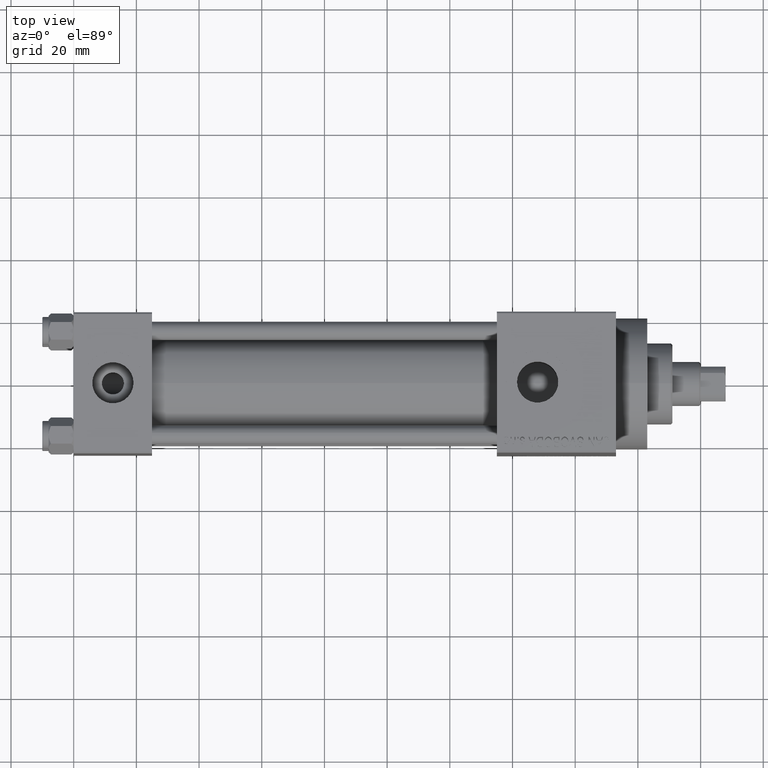
[diagram: clean part render]
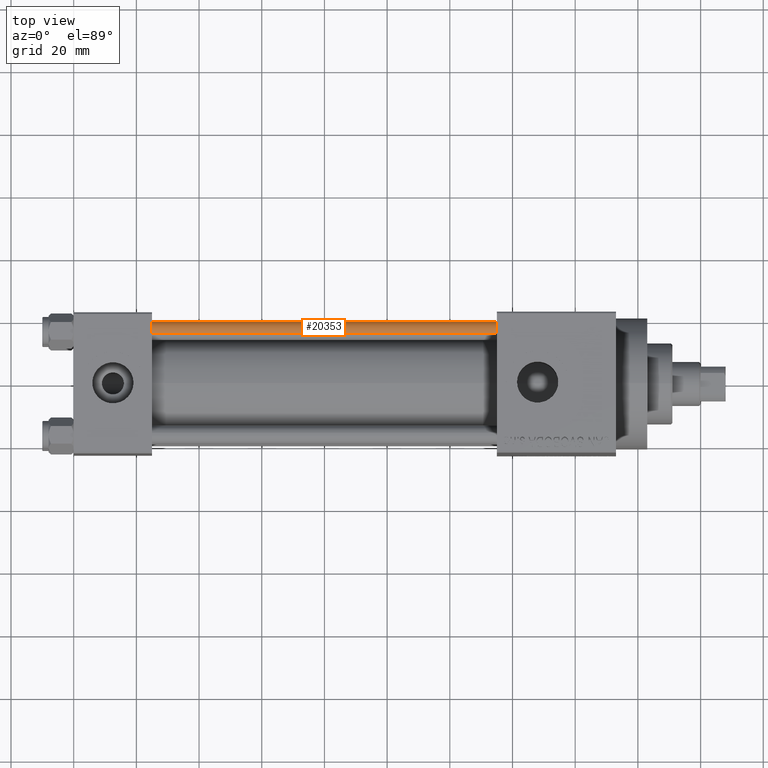
[diagram: same view with one face highlighted and labeled with its STEP entity id]
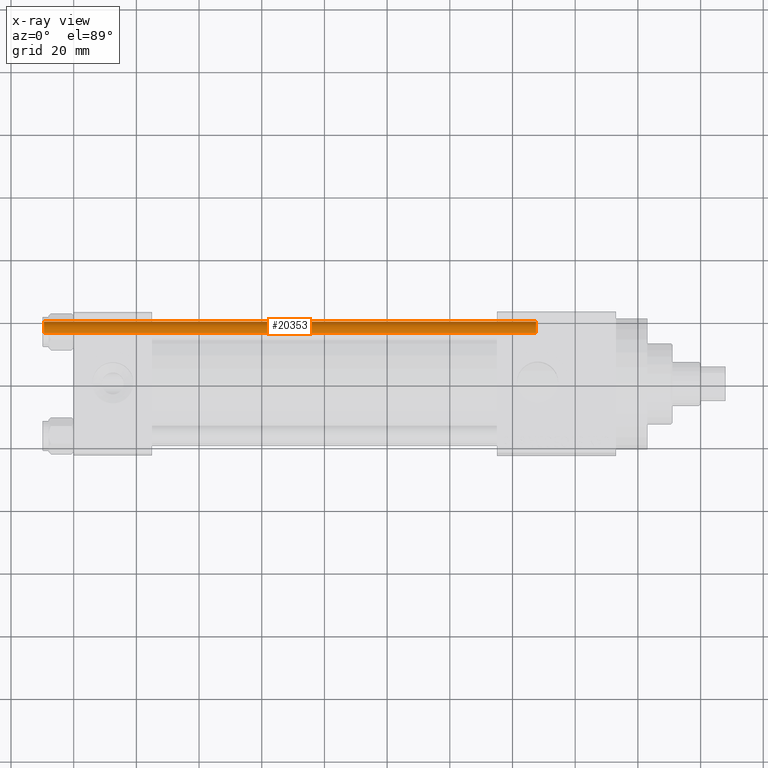
[diagram: x-ray of the same camera — body ghosted, the highlighted face saturated]
A machine part, top view. The second image highlights one B-rep face of the part: STEP entity #20353.
The next image is the same camera in x-ray: the body ghosted, the highlighted face saturated — about 0% of this face is hidden behind the body in this view.
In plain terms, the highlighted cylindrical surface (edge-blend (fillet) strip) has radius 3 mm, axis along (-1, -0, 0).
Its self-contained STEP definition (entity closure, byte-faithful):
#328 = CARTESIAN_POINT ( 'NONE',  ( 3.000000000000000444, 3.673940397442060361E-16, 0.5000000000000281997 ) ) ;
#2413 = AXIS2_PLACEMENT_3D ( 'NONE', #29648, #15056, #26062 ) ;
#3237 = CARTESIAN_POINT ( 'NONE',  ( -3.000000000000000444, 0.000000000000000000, 157.5000000000000000 ) ) ;
#5479 = VERTEX_POINT ( 'NONE', #3237 ) ;
#5518 = EDGE_CURVE ( 'NONE', #31174, #34220, #43512, .T. ) ;
#5670 = ORIENTED_EDGE ( 'NONE', *, *, #24209, .F. ) ;
#5750 = LINE ( 'NONE', #30853, #38729 ) ;
#6931 = ORIENTED_EDGE ( 'NONE', *, *, #20286, .T. ) ;
#8508 = LINE ( 'NONE', #23099, #43315 ) ;
#8778 = ORIENTED_EDGE ( 'NONE', *, *, #5518, .T. ) ;
#9288 = CYLINDRICAL_SURFACE ( 'NONE', #33831, 3.000000000000000444 ) ;
#12130 = AXIS2_PLACEMENT_3D ( 'NONE', #47046, #14234, #46328 ) ;
#12882 = FACE_OUTER_BOUND ( 'NONE', #39168, .T. ) ;
#13354 = CARTESIAN_POINT ( 'NONE',  ( 0.000000000000000000, 0.000000000000000000, 158.0000000000000000 ) ) ;
#14234 = DIRECTION ( 'NONE',  ( -0.000000000000000000, -0.000000000000000000, 1.000000000000000000 ) ) ;
#15056 = DIRECTION ( 'NONE',  ( 0.000000000000000000, 0.000000000000000000, -1.000000000000000000 ) ) ;
#16472 = DIRECTION ( 'NONE',  ( -1.000000000000000000, 0.000000000000000000, 0.000000000000000000 ) ) ;
#20286 = EDGE_CURVE ( 'NONE', #5479, #46948, #40680, .T. ) ;
#20353 = ADVANCED_FACE ( 'NONE', ( #12882 ), #9288, .T. ) ;
#20458 = DIRECTION ( 'NONE',  ( -0.000000000000000000, -0.000000000000000000, -1.000000000000000000 ) ) ;
#21738 = CARTESIAN_POINT ( 'NONE',  ( 3.000000000000000444, 3.673940397442060361E-16, 157.5000000000000000 ) ) ;
#23099 = CARTESIAN_POINT ( 'NONE',  ( -3.000000000000000444, 0.000000000000000000, 158.0000000000000000 ) ) ;
#24209 = EDGE_CURVE ( 'NONE', #5479, #34220, #8508, .T. ) ;
#26062 = DIRECTION ( 'NONE',  ( 1.000000000000000000, 0.000000000000000000, 0.000000000000000000 ) ) ;
#26705 = CARTESIAN_POINT ( 'NONE',  ( -3.000000000000000444, 0.000000000000000000, 0.5000000000000281997 ) ) ;
#28332 = ORIENTED_EDGE ( 'NONE', *, *, #37696, .T. ) ;
#29648 = CARTESIAN_POINT ( 'NONE',  ( 0.000000000000000000, 0.000000000000000000, 157.5000000000000000 ) ) ;
#30853 = CARTESIAN_POINT ( 'NONE',  ( 3.000000000000000444, 3.673940397442060361E-16, 158.0000000000000000 ) ) ;
#31093 = DIRECTION ( 'NONE',  ( -0.000000000000000000, -0.000000000000000000, -1.000000000000000000 ) ) ;
#31174 = VERTEX_POINT ( 'NONE', #328 ) ;
#33831 = AXIS2_PLACEMENT_3D ( 'NONE', #13354, #42309, #16472 ) ;
#34220 = VERTEX_POINT ( 'NONE', #26705 ) ;
#37696 = EDGE_CURVE ( 'NONE', #46948, #31174, #5750, .T. ) ;
#38729 = VECTOR ( 'NONE', #31093, 1000.000000000000000 ) ;
#39168 = EDGE_LOOP ( 'NONE', ( #6931, #28332, #8778, #5670 ) ) ;
#40680 = CIRCLE ( 'NONE', #2413, 3.000000000000000444 ) ;
#42309 = DIRECTION ( 'NONE',  ( -0.000000000000000000, -0.000000000000000000, -1.000000000000000000 ) ) ;
#43315 = VECTOR ( 'NONE', #20458, 1000.000000000000000 ) ;
#43512 = CIRCLE ( 'NONE', #12130, 3.000000000000000444 ) ;
#46328 = DIRECTION ( 'NONE',  ( 1.000000000000000000, 0.000000000000000000, 0.000000000000000000 ) ) ;
#46948 = VERTEX_POINT ( 'NONE', #21738 ) ;
#47046 = CARTESIAN_POINT ( 'NONE',  ( 0.000000000000000000, 0.000000000000000000, 0.5000000000000281997 ) ) ;